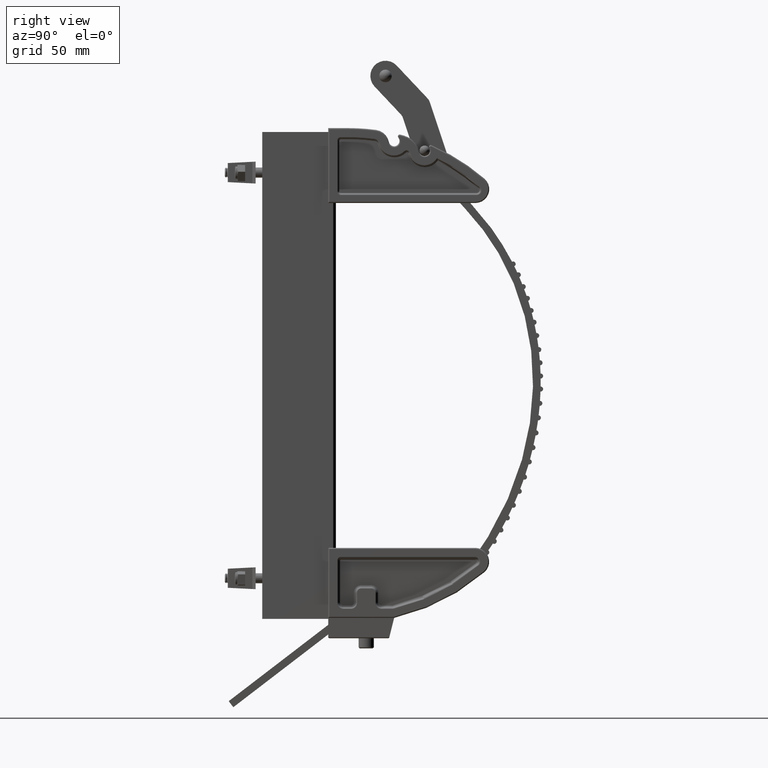
[diagram: clean part render]
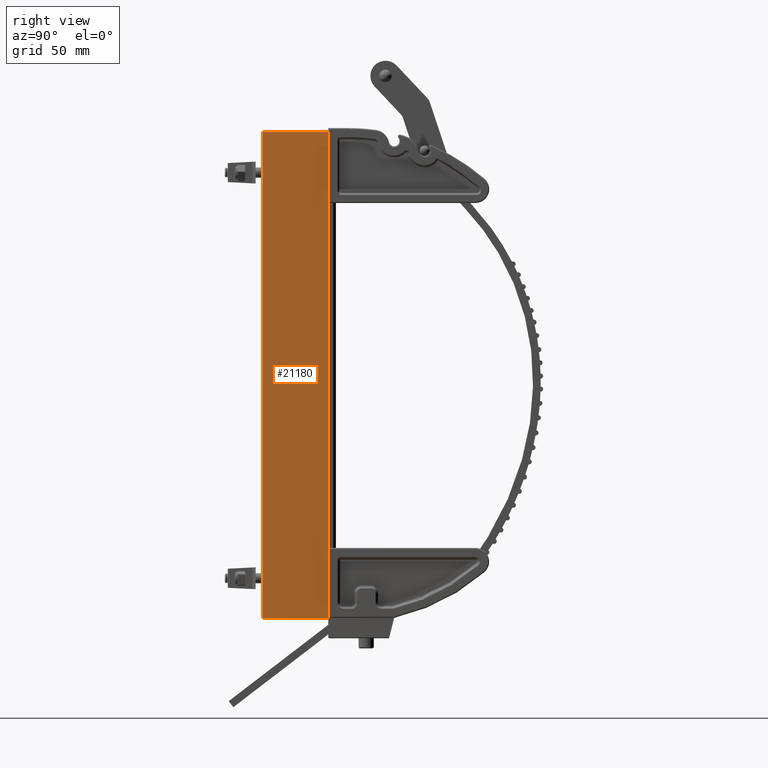
[diagram: same view with one face highlighted and labeled with its STEP entity id]
A machine part, right view. The second image highlights one B-rep face of the part: STEP entity #21180.
In plain terms, the highlighted planar face has unit normal (-1, 0, 0).
Its self-contained STEP definition (entity closure, byte-faithful):
#81 = CARTESIAN_POINT ( 'NONE',  ( 0.8125000000000000000, 0.0000000000000000000, 6.000000000000000900 ) ) ;
#1152 = LINE ( 'NONE', #22062, #32418 ) ;
#1768 = ORIENTED_EDGE ( 'NONE', *, *, #18222, .F. ) ;
#2140 = DIRECTION ( 'NONE',  ( -0.0000000000000000000, -0.0000000000000000000, -1.000000000000000000 ) ) ;
#3029 = CARTESIAN_POINT ( 'NONE',  ( 0.8125000000000000000, 0.0000000000000000000, -6.000000000000000900 ) ) ;
#3933 = DIRECTION ( 'NONE',  ( 0.0000000000000000000, 1.000000000000000000, 0.0000000000000000000 ) ) ;
#5435 = EDGE_LOOP ( 'NONE', ( #38940, #1768, #8446, #17901 ) ) ;
#6081 = FACE_OUTER_BOUND ( 'NONE', #5435, .T. ) ;
#8162 = LINE ( 'NONE', #38403, #25250 ) ;
#8396 = CARTESIAN_POINT ( 'NONE',  ( 0.8125000000000000000, 1.625000000000000200, 6.000000000000000900 ) ) ;
#8446 = ORIENTED_EDGE ( 'NONE', *, *, #21054, .F. ) ;
#12703 = VERTEX_POINT ( 'NONE', #8396 ) ;
#14259 = DIRECTION ( 'NONE',  ( -1.000000000000000000, 0.0000000000000000000, 0.0000000000000000000 ) ) ;
#17672 = VERTEX_POINT ( 'NONE', #23250 ) ;
#17901 = ORIENTED_EDGE ( 'NONE', *, *, #27985, .T. ) ;
#18222 = EDGE_CURVE ( 'NONE', #12703, #33753, #8162, .T. ) ;
#18226 = DIRECTION ( 'NONE',  ( -0.0000000000000000000, -0.0000000000000000000, -1.000000000000000000 ) ) ;
#21054 = EDGE_CURVE ( 'NONE', #17672, #12703, #24113, .T. ) ;
#21180 = ADVANCED_FACE ( 'NONE', ( #6081 ), #26310, .F. ) ;
#22062 = CARTESIAN_POINT ( 'NONE',  ( 0.8125000000000000000, 0.0000000000000000000, -6.000000000000000900 ) ) ;
#22588 = VECTOR ( 'NONE', #18226, 39.37007874015748100 ) ;
#23250 = CARTESIAN_POINT ( 'NONE',  ( 0.8125000000000000000, 0.0000000000000000000, 6.000000000000000900 ) ) ;
#23267 = CARTESIAN_POINT ( 'NONE',  ( 0.8125000000000000000, 0.0000000000000000000, 6.000000000000000900 ) ) ;
#24113 = LINE ( 'NONE', #34143, #32142 ) ;
#25250 = VECTOR ( 'NONE', #2140, 39.37007874015748100 ) ;
#25287 = VERTEX_POINT ( 'NONE', #3029 ) ;
#26310 = PLANE ( 'NONE',  #38253 ) ;
#27985 = EDGE_CURVE ( 'NONE', #17672, #25287, #30644, .T. ) ;
#30644 = LINE ( 'NONE', #81, #22588 ) ;
#31059 = DIRECTION ( 'NONE',  ( 0.0000000000000000000, 1.000000000000000000, 0.0000000000000000000 ) ) ;
#32142 = VECTOR ( 'NONE', #3933, 39.37007874015748100 ) ;
#32418 = VECTOR ( 'NONE', #31059, 39.37007874015748100 ) ;
#32528 = EDGE_CURVE ( 'NONE', #25287, #33753, #1152, .T. ) ;
#33753 = VERTEX_POINT ( 'NONE', #36310 ) ;
#34143 = CARTESIAN_POINT ( 'NONE',  ( 0.8125000000000000000, 0.0000000000000000000, 6.000000000000000900 ) ) ;
#35428 = DIRECTION ( 'NONE',  ( 0.0000000000000000000, 0.0000000000000000000, 1.000000000000000000 ) ) ;
#36310 = CARTESIAN_POINT ( 'NONE',  ( 0.8125000000000000000, 1.625000000000000200, -6.000000000000000900 ) ) ;
#38253 = AXIS2_PLACEMENT_3D ( 'NONE', #23267, #14259, #35428 ) ;
#38403 = CARTESIAN_POINT ( 'NONE',  ( 0.8125000000000000000, 1.625000000000000200, 6.000000000000000900 ) ) ;
#38940 = ORIENTED_EDGE ( 'NONE', *, *, #32528, .T. ) ;